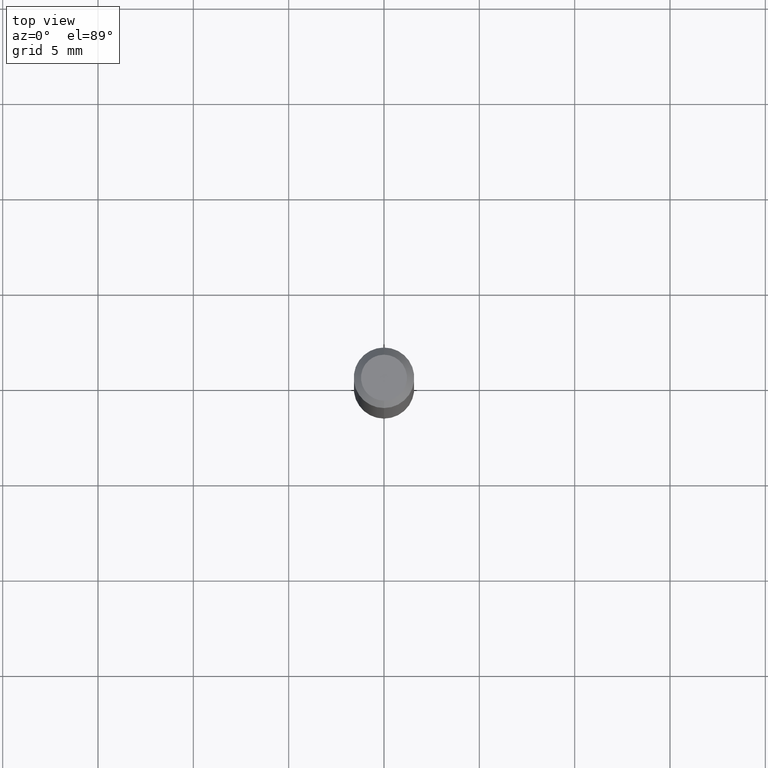
[diagram: clean part render]
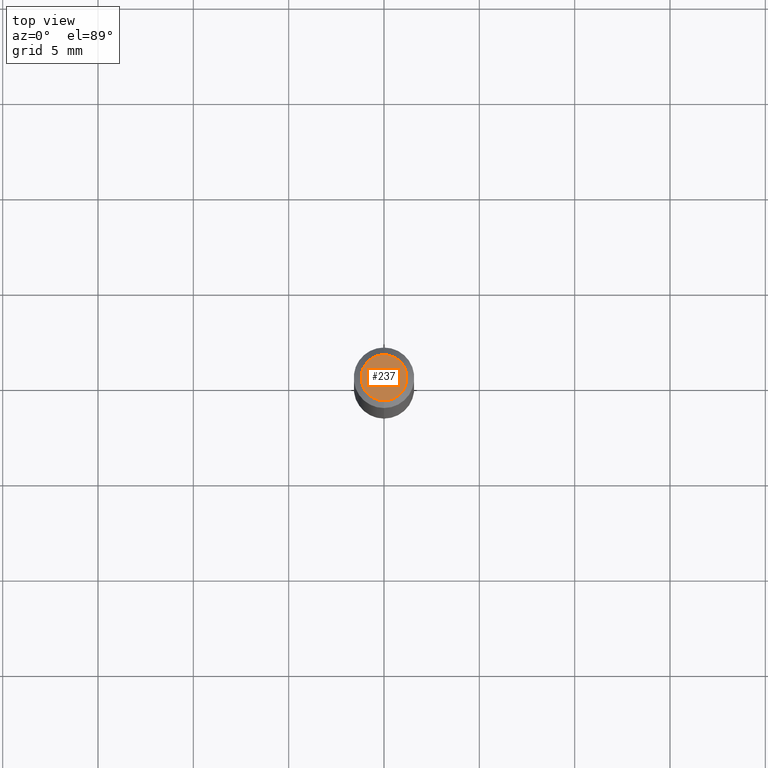
[diagram: same view with one face highlighted and labeled with its STEP entity id]
A machine part, top view. The second image highlights one B-rep face of the part: STEP entity #237.
In plain terms, the highlighted planar face has unit normal (0, -0, -1).
Its self-contained STEP definition (entity closure, byte-faithful):
#53 = CIRCLE ( 'NONE', #471, 0.04749999999999999362 ) ;
#63 = FACE_OUTER_BOUND ( 'NONE', #87, .T. ) ;
#87 = EDGE_LOOP ( 'NONE', ( #282, #358 ) ) ;
#115 = CARTESIAN_POINT ( 'NONE',  ( -3.773273898774340269E-16, -0.04749999999999999362, 1.569861425053352806E-16 ) ) ;
#121 = DIRECTION ( 'NONE',  ( -2.445460731659574358E-29, 3.491492902023324222E-15, 1.000000000000000000 ) ) ;
#126 = DIRECTION ( 'NONE',  ( -2.445460731659574358E-29, 3.491492902023324222E-15, 1.000000000000000000 ) ) ;
#128 = CARTESIAN_POINT ( 'NONE',  ( 3.840629472727447874E-16, 0.04749999999999999362, -1.747056831868805136E-16 ) ) ;
#131 = CARTESIAN_POINT ( 'NONE',  ( 2.166622045988159040E-46, -3.093382525836433733E-32, -8.859770340772611896E-18 ) ) ;
#184 = CARTESIAN_POINT ( 'NONE',  ( 3.316907271900976096E-16, 0.04749999999999999362, -1.702757980164941992E-16 ) ) ;
#189 = CARTESIAN_POINT ( 'NONE',  ( 2.166622045988159040E-46, -3.093382525836433733E-32, -8.859770340772611896E-18 ) ) ;
#214 = PLANE ( 'NONE',  #376 ) ;
#237 = ADVANCED_FACE ( 'NONE', ( #63 ), #214, .F. ) ;
#245 = EDGE_CURVE ( 'NONE', #443, #305, #417, .T. ) ;
#269 = DIRECTION ( 'NONE',  ( -6.982962677686266711E-15, -1.000000000000000000, 3.491492902023324222E-15 ) ) ;
#282 = ORIENTED_EDGE ( 'NONE', *, *, #245, .T. ) ;
#305 = VERTEX_POINT ( 'NONE', #115 ) ;
#326 = AXIS2_PLACEMENT_3D ( 'NONE', #189, #121, #269 ) ;
#351 = DIRECTION ( 'NONE',  ( 2.445460731659574078E-29, -3.491492902023324222E-15, -1.000000000000000000 ) ) ;
#358 = ORIENTED_EDGE ( 'NONE', *, *, #411, .T. ) ;
#376 = AXIS2_PLACEMENT_3D ( 'NONE', #184, #351, #433 ) ;
#399 = DIRECTION ( 'NONE',  ( -6.982962677686266711E-15, -1.000000000000000000, 3.491492902023324222E-15 ) ) ;
#411 = EDGE_CURVE ( 'NONE', #305, #443, #53, .T. ) ;
#417 = CIRCLE ( 'NONE', #326, 0.04749999999999999362 ) ;
#433 = DIRECTION ( 'NONE',  ( 6.982962677686265922E-15, 1.000000000000000000, -3.491492902023324222E-15 ) ) ;
#443 = VERTEX_POINT ( 'NONE', #128 ) ;
#471 = AXIS2_PLACEMENT_3D ( 'NONE', #131, #126, #399 ) ;